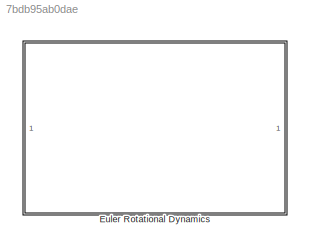
MODEL slx_7bdb95ab0dae
KIND library
CONFIG AbsTol = auto
CONFIG EnableMultiTasking = off
CONFIG FixedStep = auto
CONFIG MaxStep = auto
CONFIG MinStep = auto
CONFIG RelTol = 1e-3
CONFIG SampleTimeConstraint = Unconstrained
CONFIG SolverName = VariableStepAuto
CONFIG StartTime = 0.0
CONFIG StopTime = 10.0
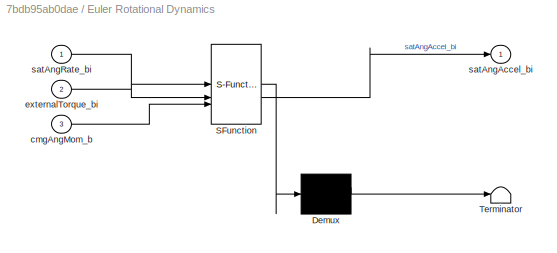
BLOCK [SubSystem] Euler Rotational Dynamics 
  ErrorFcn = Stateflow.Translate.translate
  PermitHierarchicalResolution = ExplicitOnly
  SFBlockType = MATLAB Function
  TreatAsAtomicUnit = on
BLOCK [Demux] Euler Rotational Dynamics / Demux 
  Outputs = 1
BLOCK [S-Function] Euler Rotational Dynamics / SFunction 
  EnableBusSupport = off
  FunctionName = sf_sfun
  Parameters = satInertiaTensor
  PortCounts = [3 2]
  SFcnIsStateOwnerBlock = off
  SFunctionDeploymentMode = off
  Tag = Stateflow S-Function 2
BLOCK [Terminator] Euler Rotational Dynamics / Terminator 
BLOCK [Inport] Euler Rotational Dynamics /cmgAngMom_b
  Port = 3
BLOCK [Inport] Euler Rotational Dynamics /externalTorque_bi
  Port = 2
BLOCK [Outport] Euler Rotational Dynamics /satAngAccel_bi
BLOCK [Inport] Euler Rotational Dynamics /satAngRate_bi
CHART Euler Rotational Dynamics  states=1 transitions=1
  STATE_LABEL 'eML_blk_kernel()'
  STATE_LABEL 'SCRIPT:\n%satAngularAccel   Rigid Body Dynamics for Satellite under angular accel.\nfunction satAngAccel_bi = satAngularAccel( ...\n    satAngRate_bi,externalTorque_bi,cmgAngMom_b, ...% Inputs\n    satInertiaTensor ... % Parameters\n    )\n\n% ------------------------------------------------------------------------------\n% Calculate Angular Acceleration\n\n% if norm(cmgAngMom_b) >= 4760*4\n%     [M,i] = max...<+285ch>'
CHART  states=0 transitions=0
